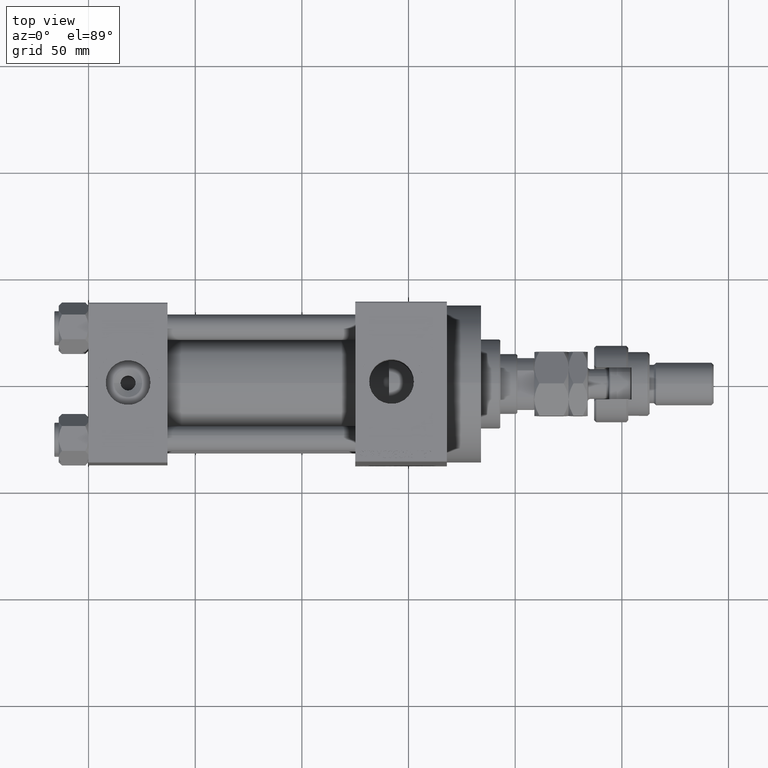
[diagram: clean part render]
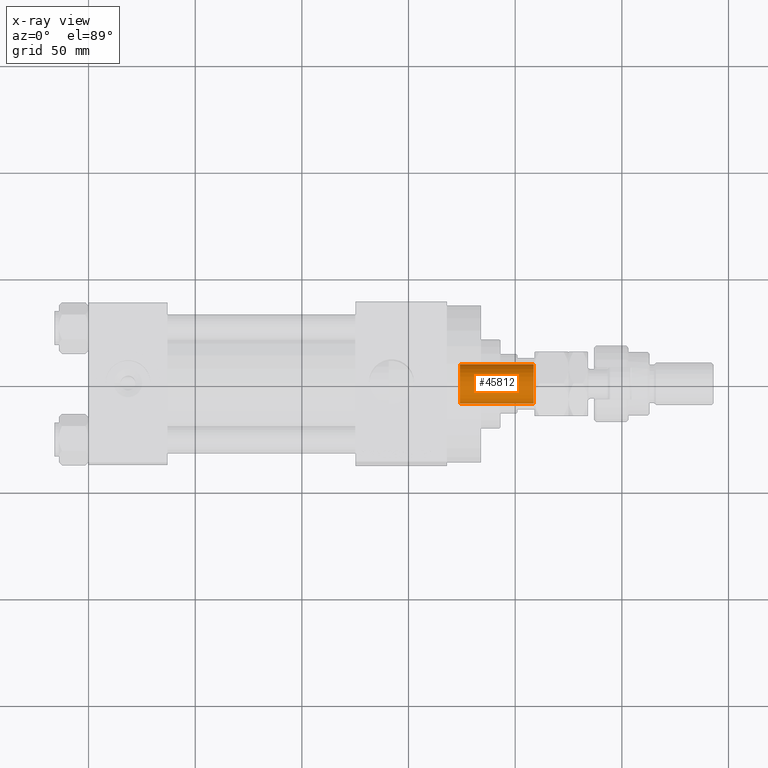
[diagram: x-ray — body ghosted, one internal face saturated and labeled with its STEP entity id]
A machine part, top view, then the same camera in x-ray: the body is ghosted and one INTERNAL B-rep face — a face not visible from any outside direction — is saturated and labeled: STEP entity #45812.
In plain terms, the highlighted cylindrical surface (edge-blend (fillet) strip) has radius 9.25 mm, axis along (1, 0, 0).
Its self-contained STEP definition (entity closure, byte-faithful):
#79 = CARTESIAN_POINT ( 'NONE',  ( -9.249999999999994671, 1.132798289211300909E-15, 172.0000000000000000 ) ) ;
#4526 = DIRECTION ( 'NONE',  ( 1.000000000000000000, 0.000000000000000000, 0.000000000000000000 ) ) ;
#4625 = CARTESIAN_POINT ( 'NONE',  ( -9.249999999999992895, 1.132798289211300712E-15, 137.0000000000000000 ) ) ;
#4931 = DIRECTION ( 'NONE',  ( -0.000000000000000000, -0.000000000000000000, 1.000000000000000000 ) ) ;
#7576 = VERTEX_POINT ( 'NONE', #4625 ) ;
#9327 = DIRECTION ( 'NONE',  ( 0.000000000000000000, 0.000000000000000000, 1.000000000000000000 ) ) ;
#9923 = LINE ( 'NONE', #39901, #21564 ) ;
#11989 = ORIENTED_EDGE ( 'NONE', *, *, #35374, .T. ) ;
#15034 = VECTOR ( 'NONE', #34634, 1000.000000000000000 ) ;
#15735 = EDGE_CURVE ( 'NONE', #7576, #35834, #29323, .T. ) ;
#16136 = VERTEX_POINT ( 'NONE', #22160 ) ;
#16682 = CARTESIAN_POINT ( 'NONE',  ( 0.000000000000000000, 0.000000000000000000, 172.0000000000000000 ) ) ;
#19388 = LINE ( 'NONE', #79, #15034 ) ;
#20485 = VERTEX_POINT ( 'NONE', #21956 ) ;
#21564 = VECTOR ( 'NONE', #36355, 1000.000000000000000 ) ;
#21956 = CARTESIAN_POINT ( 'NONE',  ( -9.249999999999994671, 1.132798289211300909E-15, 171.7000000000000171 ) ) ;
#22160 = CARTESIAN_POINT ( 'NONE',  ( 9.249999999999994671, 0.000000000000000000, 171.7000000000000171 ) ) ;
#24667 = ORIENTED_EDGE ( 'NONE', *, *, #30889, .F. ) ;
#26710 = EDGE_LOOP ( 'NONE', ( #49343, #34059, #11989, #24667 ) ) ;
#27494 = EDGE_CURVE ( 'NONE', #7576, #20485, #19388, .T. ) ;
#28821 = CARTESIAN_POINT ( 'NONE',  ( 0.000000000000000000, 0.000000000000000000, 137.0000000000000000 ) ) ;
#28882 = DIRECTION ( 'NONE',  ( 1.000000000000000000, 0.000000000000000000, 0.000000000000000000 ) ) ;
#29323 = CIRCLE ( 'NONE', #44743, 9.249999999999992895 ) ;
#30889 = EDGE_CURVE ( 'NONE', #35834, #16136, #9923, .T. ) ;
#34059 = ORIENTED_EDGE ( 'NONE', *, *, #27494, .T. ) ;
#34634 = DIRECTION ( 'NONE',  ( -0.000000000000000000, -0.000000000000000000, 1.000000000000000000 ) ) ;
#34900 = CARTESIAN_POINT ( 'NONE',  ( 9.249999999999992895, 0.000000000000000000, 137.0000000000000000 ) ) ;
#35374 = EDGE_CURVE ( 'NONE', #20485, #16136, #36305, .T. ) ;
#35834 = VERTEX_POINT ( 'NONE', #34900 ) ;
#35978 = FACE_OUTER_BOUND ( 'NONE', #26710, .T. ) ;
#36305 = CIRCLE ( 'NONE', #49285, 9.249999999999994671 ) ;
#36355 = DIRECTION ( 'NONE',  ( -0.000000000000000000, -0.000000000000000000, 1.000000000000000000 ) ) ;
#36952 = DIRECTION ( 'NONE',  ( 1.000000000000000000, 0.000000000000000000, 0.000000000000000000 ) ) ;
#39901 = CARTESIAN_POINT ( 'NONE',  ( 9.249999999999994671, 0.000000000000000000, 172.0000000000000000 ) ) ;
#40309 = DIRECTION ( 'NONE',  ( -0.000000000000000000, -0.000000000000000000, 1.000000000000000000 ) ) ;
#42402 = AXIS2_PLACEMENT_3D ( 'NONE', #16682, #40309, #28882 ) ;
#43858 = CYLINDRICAL_SURFACE ( 'NONE', #42402, 9.249999999999994671 ) ;
#44743 = AXIS2_PLACEMENT_3D ( 'NONE', #28821, #4931, #36952 ) ;
#45812 = ADVANCED_FACE ( 'NONE', ( #35978 ), #43858, .F. ) ;
#47711 = CARTESIAN_POINT ( 'NONE',  ( 0.000000000000000000, 0.000000000000000000, 171.7000000000000171 ) ) ;
#49285 = AXIS2_PLACEMENT_3D ( 'NONE', #47711, #9327, #4526 ) ;
#49343 = ORIENTED_EDGE ( 'NONE', *, *, #15735, .F. ) ;